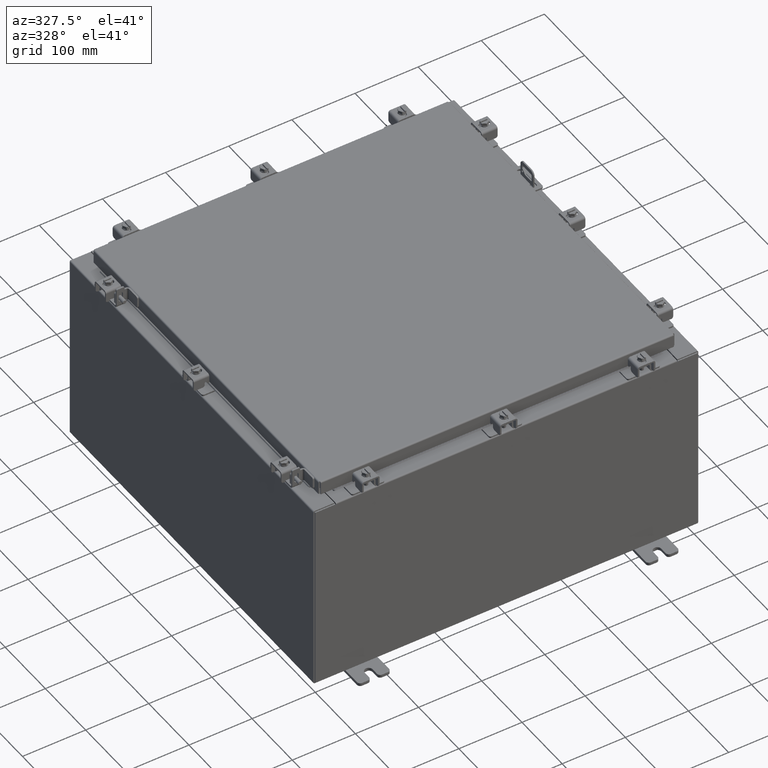
[diagram: clean part render]
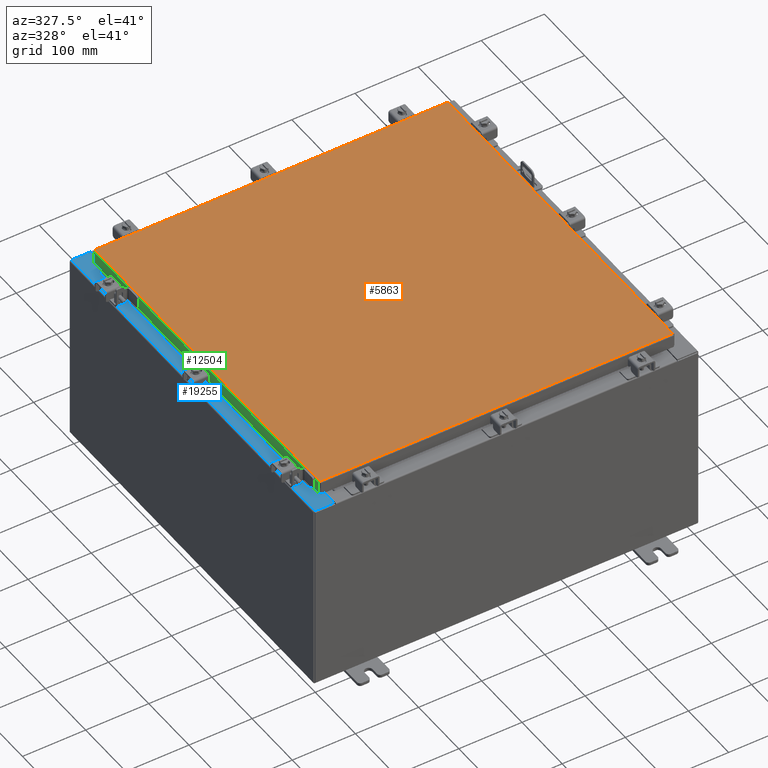
[diagram: same view with three faces highlighted in distinct colors, each labeled with its STEP entity id]
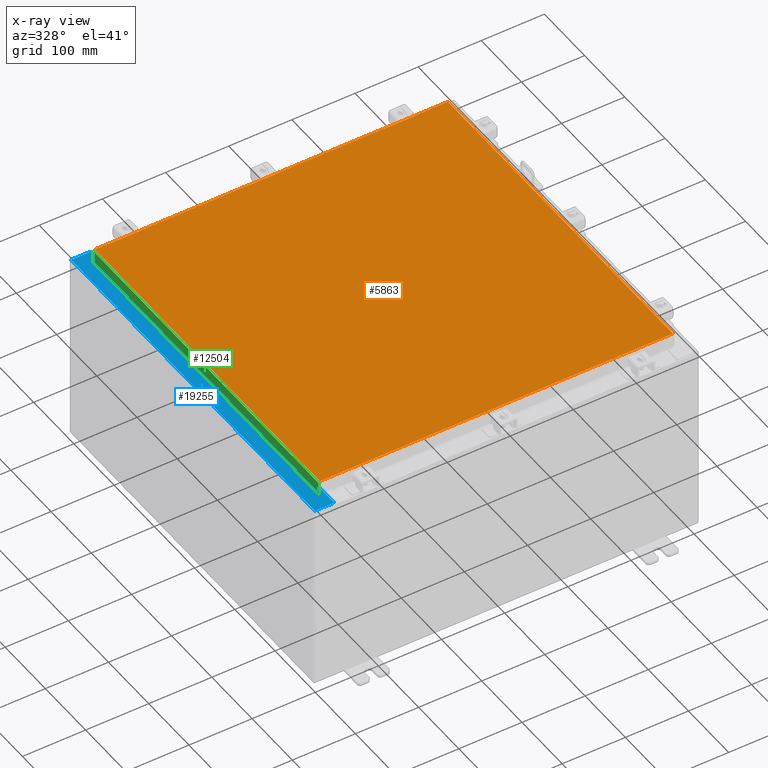
[diagram: x-ray of the same camera — body ghosted, the three highlighted faces saturated]
A machine part, auxiliary view with three faces highlighted in distinct colors.
The next image is the same camera in x-ray (body ghosted, the three faces saturated) — at least one of them is partly hidden behind the body in this view.
Their STEP definitions:

[orange] entity #5863 — the highlighted planar face has unit normal (0, 0, -1).
#693 = CARTESIAN_POINT ( 'NONE',  ( -11.00630000000000000, -11.00630000000000000, 0.0000000000000000000 ) ) ;
#790 = ORIENTED_EDGE ( 'NONE', *, *, #2454, .T. ) ;
#954 = ORIENTED_EDGE ( 'NONE', *, *, #8051, .T. ) ;
#2312 = VERTEX_POINT ( 'NONE', #11187 ) ;
#2454 = EDGE_CURVE ( 'NONE', #20577, #5805, #20436, .T. ) ;
#2459 = DIRECTION ( 'NONE',  ( 1.000000000000000000, -0.0000000000000000000, -0.0000000000000000000 ) ) ;
#2875 = LINE ( 'NONE', #20467, #8047 ) ;
#3463 = VERTEX_POINT ( 'NONE', #9737 ) ;
#3544 = VECTOR ( 'NONE', #4627, 39.37007874015748100 ) ;
#4627 = DIRECTION ( 'NONE',  ( 0.0000000000000000000, -1.000000000000000000, 0.0000000000000000000 ) ) ;
#4650 = CARTESIAN_POINT ( 'NONE',  ( -11.00630000000000000, -11.00630000000000000, 0.0000000000000000000 ) ) ;
#5280 = EDGE_CURVE ( 'NONE', #5805, #3463, #6664, .T. ) ;
#5805 = VERTEX_POINT ( 'NONE', #4650 ) ;
#5863 = ADVANCED_FACE ( 'NONE', ( #21640 ), #17292, .F. ) ;
#6664 = LINE ( 'NONE', #693, #15361 ) ;
#6748 = DIRECTION ( 'NONE',  ( -1.000000000000000000, -0.0000000000000000000, -0.0000000000000000000 ) ) ;
#6875 = DIRECTION ( 'NONE',  ( 0.0000000000000000000, 0.0000000000000000000, -1.000000000000000000 ) ) ;
#7724 = CARTESIAN_POINT ( 'NONE',  ( -11.00630000000000000, 11.00630000000000000, 0.0000000000000000000 ) ) ;
#8037 = EDGE_LOOP ( 'NONE', ( #14803, #11551, #954, #790 ) ) ;
#8047 = VECTOR ( 'NONE', #15195, 39.37007874015748100 ) ;
#8051 = EDGE_CURVE ( 'NONE', #2312, #20577, #19919, .T. ) ;
#9737 = CARTESIAN_POINT ( 'NONE',  ( 11.00630000000000000, -11.00630000000000000, 0.0000000000000000000 ) ) ;
#9858 = EDGE_CURVE ( 'NONE', #3463, #2312, #2875, .T. ) ;
#11149 = AXIS2_PLACEMENT_3D ( 'NONE', #13779, #6875, #19047 ) ;
#11187 = CARTESIAN_POINT ( 'NONE',  ( 11.00630000000000000, 11.00630000000000000, 0.0000000000000000000 ) ) ;
#11551 = ORIENTED_EDGE ( 'NONE', *, *, #9858, .T. ) ;
#13779 = CARTESIAN_POINT ( 'NONE',  ( 0.0000000000000000000, 0.0000000000000000000, 0.0000000000000000000 ) ) ;
#14803 = ORIENTED_EDGE ( 'NONE', *, *, #5280, .T. ) ;
#15019 = CARTESIAN_POINT ( 'NONE',  ( -11.00630000000000000, 11.00630000000000000, 0.0000000000000000000 ) ) ;
#15195 = DIRECTION ( 'NONE',  ( 0.0000000000000000000, 1.000000000000000000, 0.0000000000000000000 ) ) ;
#15361 = VECTOR ( 'NONE', #2459, 39.37007874015748100 ) ;
#15817 = VECTOR ( 'NONE', #6748, 39.37007874015748100 ) ;
#17292 = PLANE ( 'NONE',  #11149 ) ;
#18895 = CARTESIAN_POINT ( 'NONE',  ( 11.00630000000000000, 11.00630000000000000, 0.0000000000000000000 ) ) ;
#19047 = DIRECTION ( 'NONE',  ( -1.000000000000000000, 0.0000000000000000000, -0.0000000000000000000 ) ) ;
#19919 = LINE ( 'NONE', #18895, #15817 ) ;
#20436 = LINE ( 'NONE', #15019, #3544 ) ;
#20467 = CARTESIAN_POINT ( 'NONE',  ( 11.00630000000000000, -11.00630000000000000, 0.0000000000000000000 ) ) ;
#20577 = VERTEX_POINT ( 'NONE', #7724 ) ;
#21640 = FACE_OUTER_BOUND ( 'NONE', #8037, .T. ) ;

[blue] entity #19255 — the highlighted planar face has unit normal (0, 0, -1).
#20 = CIRCLE ( 'NONE', #10427, 0.01867499999999949400 ) ;
#240 = DIRECTION ( 'NONE',  ( 1.000000000000000000, 0.0000000000000000000, 0.0000000000000000000 ) ) ;
#475 = CARTESIAN_POINT ( 'NONE',  ( -10.71270000000004800, -10.59374999999998900, 11.92530000000000900 ) ) ;
#926 = LINE ( 'NONE', #22562, #5584 ) ;
#1228 = DIRECTION ( 'NONE',  ( 7.132762385546384700E-015, 0.0000000000000000000, -1.000000000000000000 ) ) ;
#1470 = VERTEX_POINT ( 'NONE', #8075 ) ;
#1617 = EDGE_LOOP ( 'NONE', ( #8914, #11695, #16918, #18798, #12690, #2845, #11885, #19704, #13685, #17496, #22480, #12405 ) ) ;
#1772 = LINE ( 'NONE', #4943, #10483 ) ;
#1778 = DIRECTION ( 'NONE',  ( -0.0000000000000000000, -1.000000000000000000, -0.0000000000000000000 ) ) ;
#1911 = CARTESIAN_POINT ( 'NONE',  ( -11.91230000000004500, 11.92529999999999800, 11.92530000000000000 ) ) ;
#1978 = DIRECTION ( 'NONE',  ( -0.0000000000000000000, 1.000000000000000000, -0.0000000000000000000 ) ) ;
#2146 = CARTESIAN_POINT ( 'NONE',  ( -10.75005000000004600, 10.59374999999999800, 11.92530000000000900 ) ) ;
#2252 = AXIS2_PLACEMENT_3D ( 'NONE', #11674, #1228, #13393 ) ;
#2845 = ORIENTED_EDGE ( 'NONE', *, *, #20452, .T. ) ;
#2948 = DIRECTION ( 'NONE',  ( -7.132762385546384700E-015, -0.0000000000000000000, 1.000000000000000000 ) ) ;
#3655 = VECTOR ( 'NONE', #1778, 39.37007874015748100 ) ;
#3999 = LINE ( 'NONE', #18251, #21979 ) ;
#4052 = LINE ( 'NONE', #15904, #22576 ) ;
#4216 = CARTESIAN_POINT ( 'NONE',  ( -10.69970000000004600, 10.63109999999999600, 11.92530000000000900 ) ) ;
#4345 = EDGE_CURVE ( 'NONE', #1470, #20784, #3999, .T. ) ;
#4500 = FACE_OUTER_BOUND ( 'NONE', #1617, .T. ) ;
#4943 = CARTESIAN_POINT ( 'NONE',  ( -8.532114493236847900E-014, -11.92530000000000000, 11.92530000000008500 ) ) ;
#5094 = EDGE_CURVE ( 'NONE', #11026, #12832, #1772, .T. ) ;
#5584 = VECTOR ( 'NONE', #18959, 39.37007874015748100 ) ;
#6042 = CARTESIAN_POINT ( 'NONE',  ( -10.75005000000004600, -10.61242499999998900, 11.92530000000000900 ) ) ;
#6709 = DIRECTION ( 'NONE',  ( 1.000000000000000000, -0.0000000000000000000, 7.132762385546384700E-015 ) ) ;
#6909 = VERTEX_POINT ( 'NONE', #19294 ) ;
#6951 = CARTESIAN_POINT ( 'NONE',  ( -10.69970000000004600, 0.0000000000000000000, 11.92530000000000900 ) ) ;
#7142 = EDGE_CURVE ( 'NONE', #21472, #20714, #13118, .T. ) ;
#7419 = DIRECTION ( 'NONE',  ( -1.000000000000000000, 0.0000000000000000000, 0.0000000000000000000 ) ) ;
#7768 = DIRECTION ( 'NONE',  ( 1.000000000000000000, 0.0000000000000000000, 0.0000000000000000000 ) ) ;
#7898 = EDGE_CURVE ( 'NONE', #18976, #22532, #20, .T. ) ;
#8036 = CARTESIAN_POINT ( 'NONE',  ( -10.75005000000004600, -10.63109999999998800, 11.92530000000000900 ) ) ;
#8075 = CARTESIAN_POINT ( 'NONE',  ( -10.69970000000004600, 11.92529999999999800, 11.92530000000000900 ) ) ;
#8120 = DIRECTION ( 'NONE',  ( 1.000000000000000000, 0.0000000000000000000, 0.0000000000000000000 ) ) ;
#8611 = DIRECTION ( 'NONE',  ( 0.0000000000000000000, 1.000000000000000000, 0.0000000000000000000 ) ) ;
#8812 = LINE ( 'NONE', #15710, #3655 ) ;
#8914 = ORIENTED_EDGE ( 'NONE', *, *, #19077, .F. ) ;
#9191 = CARTESIAN_POINT ( 'NONE',  ( -10.69970000000004600, -11.92530000000000000, 11.92530000000000900 ) ) ;
#9286 = EDGE_CURVE ( 'NONE', #10743, #1470, #21985, .T. ) ;
#9581 = CARTESIAN_POINT ( 'NONE',  ( -11.91230000000004500, -11.92530000000000000, 11.92530000000000000 ) ) ;
#10146 = VECTOR ( 'NONE', #8120, 39.37007874015748100 ) ;
#10427 = AXIS2_PLACEMENT_3D ( 'NONE', #13345, #2948, #15084 ) ;
#10477 = VERTEX_POINT ( 'NONE', #13341 ) ;
#10483 = VECTOR ( 'NONE', #6709, 39.37007874015748100 ) ;
#10665 = EDGE_CURVE ( 'NONE', #10477, #12151, #8812, .T. ) ;
#10743 = VERTEX_POINT ( 'NONE', #19367 ) ;
#11026 = VERTEX_POINT ( 'NONE', #9581 ) ;
#11523 = VECTOR ( 'NONE', #19562, 39.37007874015748100 ) ;
#11674 = CARTESIAN_POINT ( 'NONE',  ( -8.532114493236847900E-014, 0.0000000000000000000, 11.92530000000008500 ) ) ;
#11695 = ORIENTED_EDGE ( 'NONE', *, *, #9286, .T. ) ;
#11885 = ORIENTED_EDGE ( 'NONE', *, *, #14510, .F. ) ;
#12061 = LINE ( 'NONE', #12603, #11523 ) ;
#12151 = VERTEX_POINT ( 'NONE', #475 ) ;
#12405 = ORIENTED_EDGE ( 'NONE', *, *, #7898, .F. ) ;
#12603 = CARTESIAN_POINT ( 'NONE',  ( -10.69970000000004600, 0.0000000000000000000, 11.92530000000000900 ) ) ;
#12690 = ORIENTED_EDGE ( 'NONE', *, *, #5094, .T. ) ;
#12703 = VECTOR ( 'NONE', #8611, 39.37007874015748100 ) ;
#12832 = VERTEX_POINT ( 'NONE', #9191 ) ;
#13118 = CIRCLE ( 'NONE', #21080, 0.01867499999999949400 ) ;
#13285 = VECTOR ( 'NONE', #1978, 39.37007874015748100 ) ;
#13341 = CARTESIAN_POINT ( 'NONE',  ( -10.71270000000004800, 10.59374999999999800, 11.92530000000000900 ) ) ;
#13345 = CARTESIAN_POINT ( 'NONE',  ( -10.75005000000004600, 10.61242499999999800, 11.92530000000000900 ) ) ;
#13393 = DIRECTION ( 'NONE',  ( -1.000000000000000000, 0.0000000000000000000, -7.132762385546384700E-015 ) ) ;
#13501 = CARTESIAN_POINT ( 'NONE',  ( -11.91230000000004500, 11.92529999999999800, 11.92530000000000000 ) ) ;
#13685 = ORIENTED_EDGE ( 'NONE', *, *, #19708, .F. ) ;
#14510 = EDGE_CURVE ( 'NONE', #20714, #6909, #18862, .T. ) ;
#15084 = DIRECTION ( 'NONE',  ( 1.000000000000000000, 0.0000000000000000000, 0.0000000000000000000 ) ) ;
#15158 = CARTESIAN_POINT ( 'NONE',  ( -10.75005000000004600, -10.59374999999998900, 11.92530000000000900 ) ) ;
#15710 = CARTESIAN_POINT ( 'NONE',  ( -10.71270000000004800, 10.59374999999999300, 11.92530000000000900 ) ) ;
#15904 = CARTESIAN_POINT ( 'NONE',  ( -10.75005000000004600, 10.59374999999999800, 11.92530000000000900 ) ) ;
#16918 = ORIENTED_EDGE ( 'NONE', *, *, #4345, .T. ) ;
#17496 = ORIENTED_EDGE ( 'NONE', *, *, #10665, .F. ) ;
#17931 = LINE ( 'NONE', #1911, #13285 ) ;
#18210 = DIRECTION ( 'NONE',  ( -7.132762385546384700E-015, -0.0000000000000000000, 1.000000000000000000 ) ) ;
#18251 = CARTESIAN_POINT ( 'NONE',  ( -8.532114493236847900E-014, 11.92529999999999800, 11.92530000000008500 ) ) ;
#18316 = DIRECTION ( 'NONE',  ( -1.000000000000000000, 0.0000000000000000000, -7.132762385546384700E-015 ) ) ;
#18578 = PLANE ( 'NONE',  #2252 ) ;
#18798 = ORIENTED_EDGE ( 'NONE', *, *, #21733, .F. ) ;
#18862 = LINE ( 'NONE', #20304, #10146 ) ;
#18959 = DIRECTION ( 'NONE',  ( -1.000000000000000000, 0.0000000000000000000, 0.0000000000000000000 ) ) ;
#18976 = VERTEX_POINT ( 'NONE', #19378 ) ;
#19077 = EDGE_CURVE ( 'NONE', #10743, #18976, #20587, .T. ) ;
#19255 = ADVANCED_FACE ( 'NONE', ( #4500 ), #18578, .F. ) ;
#19294 = CARTESIAN_POINT ( 'NONE',  ( -10.69970000000004600, -10.63109999999999100, 11.92530000000000900 ) ) ;
#19367 = CARTESIAN_POINT ( 'NONE',  ( -10.69970000000004600, 10.63109999999999600, 11.92530000000000900 ) ) ;
#19378 = CARTESIAN_POINT ( 'NONE',  ( -10.75005000000004600, 10.63109999999999600, 11.92530000000000900 ) ) ;
#19562 = DIRECTION ( 'NONE',  ( 0.0000000000000000000, 1.000000000000000000, 0.0000000000000000000 ) ) ;
#19704 = ORIENTED_EDGE ( 'NONE', *, *, #7142, .F. ) ;
#19708 = EDGE_CURVE ( 'NONE', #12151, #21472, #926, .T. ) ;
#20304 = CARTESIAN_POINT ( 'NONE',  ( -10.75005000000004600, -10.63109999999998800, 11.92530000000000900 ) ) ;
#20452 = EDGE_CURVE ( 'NONE', #12832, #6909, #12061, .T. ) ;
#20587 = LINE ( 'NONE', #4216, #21138 ) ;
#20714 = VERTEX_POINT ( 'NONE', #8036 ) ;
#20784 = VERTEX_POINT ( 'NONE', #13501 ) ;
#21080 = AXIS2_PLACEMENT_3D ( 'NONE', #6042, #18210, #7768 ) ;
#21138 = VECTOR ( 'NONE', #7419, 39.37007874015748100 ) ;
#21472 = VERTEX_POINT ( 'NONE', #15158 ) ;
#21733 = EDGE_CURVE ( 'NONE', #11026, #20784, #17931, .T. ) ;
#21746 = EDGE_CURVE ( 'NONE', #22532, #10477, #4052, .T. ) ;
#21979 = VECTOR ( 'NONE', #18316, 39.37007874015748100 ) ;
#21985 = LINE ( 'NONE', #6951, #12703 ) ;
#22480 = ORIENTED_EDGE ( 'NONE', *, *, #21746, .F. ) ;
#22532 = VERTEX_POINT ( 'NONE', #2146 ) ;
#22562 = CARTESIAN_POINT ( 'NONE',  ( -10.71270000000004800, -10.59374999999998900, 11.92530000000000900 ) ) ;
#22576 = VECTOR ( 'NONE', #240, 39.37007874015748100 ) ;

[green] entity #12504 — the highlighted planar face has unit normal (1, 0, -0).
#213 = CARTESIAN_POINT ( 'NONE',  ( -11.09400000000000100, -11.09400000000000100, -0.8499999999999999800 ) ) ;
#1710 = ORIENTED_EDGE ( 'NONE', *, *, #18255, .F. ) ;
#1872 = ORIENTED_EDGE ( 'NONE', *, *, #14040, .F. ) ;
#2372 = LINE ( 'NONE', #4159, #20903 ) ;
#2694 = CARTESIAN_POINT ( 'NONE',  ( -11.09400000000000100, -11.09400000000000100, -0.8499999999999999800 ) ) ;
#2832 = CARTESIAN_POINT ( 'NONE',  ( -11.09399999999999900, -11.00515786437626700, -0.08770000000000026400 ) ) ;
#2861 = VERTEX_POINT ( 'NONE', #12233 ) ;
#2978 = PLANE ( 'NONE',  #15380 ) ;
#3104 = EDGE_CURVE ( 'NONE', #17968, #2861, #14662, .T. ) ;
#3253 = CARTESIAN_POINT ( 'NONE',  ( -11.09399999999999200, 10.25515786437627200, -0.8500000000000020900 ) ) ;
#3894 = VECTOR ( 'NONE', #10943, 39.37007874015748100 ) ;
#4159 = CARTESIAN_POINT ( 'NONE',  ( -11.09399999999999900, -11.00515786437626700, -0.07470000000000015500 ) ) ;
#4364 = VERTEX_POINT ( 'NONE', #20101 ) ;
#4451 = VECTOR ( 'NONE', #10491, 39.37007874015748100 ) ;
#5031 = LINE ( 'NONE', #2694, #9089 ) ;
#5107 = ORIENTED_EDGE ( 'NONE', *, *, #12835, .F. ) ;
#5259 = FACE_OUTER_BOUND ( 'NONE', #16386, .T. ) ;
#5440 = EDGE_CURVE ( 'NONE', #22171, #2861, #5031, .T. ) ;
#5476 = DIRECTION ( 'NONE',  ( 4.379057701015054300E-047, 1.000000000000000000, 1.169666303398706800E-016 ) ) ;
#5720 = CARTESIAN_POINT ( 'NONE',  ( -11.09399999999999200, -10.25515786437626400, -0.8500000000000020900 ) ) ;
#7488 = EDGE_CURVE ( 'NONE', #4364, #18453, #19935, .T. ) ;
#8498 = LINE ( 'NONE', #5720, #3894 ) ;
#9068 = LINE ( 'NONE', #15666, #4451 ) ;
#9089 = VECTOR ( 'NONE', #21869, 39.37007874015748100 ) ;
#9966 = DIRECTION ( 'NONE',  ( 1.000000000000000000, 3.297150052053607500E-031, -2.818880942772360100E-015 ) ) ;
#10038 = VECTOR ( 'NONE', #11084, 39.37007874015748100 ) ;
#10491 = DIRECTION ( 'NONE',  ( 3.297150052053608400E-031, -1.000000000000000000, -8.987264781119276500E-046 ) ) ;
#10943 = DIRECTION ( 'NONE',  ( -0.0000000000000000000, 1.000000000000000000, -0.0000000000000000000 ) ) ;
#11084 = DIRECTION ( 'NONE',  ( -2.818880942772360100E-015, 6.982962677686267500E-015, -1.000000000000000000 ) ) ;
#12058 = ORIENTED_EDGE ( 'NONE', *, *, #3104, .T. ) ;
#12148 = ORIENTED_EDGE ( 'NONE', *, *, #7488, .F. ) ;
#12233 = CARTESIAN_POINT ( 'NONE',  ( -11.09400000000000100, 11.00515786437627100, -0.8499999999999977600 ) ) ;
#12504 = ADVANCED_FACE ( 'NONE', ( #5259 ), #2978, .F. ) ;
#12835 = EDGE_CURVE ( 'NONE', #18453, #22171, #8498, .T. ) ;
#13373 = CARTESIAN_POINT ( 'NONE',  ( -11.09399999999999900, 0.0000000000000000000, 3.059669752903974500E-014 ) ) ;
#14040 = EDGE_CURVE ( 'NONE', #17968, #16945, #9068, .T. ) ;
#14662 = LINE ( 'NONE', #16246, #10038 ) ;
#15278 = VECTOR ( 'NONE', #5476, 39.37007874015748100 ) ;
#15380 = AXIS2_PLACEMENT_3D ( 'NONE', #13373, #9966, #22147 ) ;
#15666 = CARTESIAN_POINT ( 'NONE',  ( -11.09399999999999900, -11.09400000000000100, -0.08770000000000026400 ) ) ;
#16246 = CARTESIAN_POINT ( 'NONE',  ( -11.09399999999999900, 11.00515786437626700, 1.092739197465705300E-013 ) ) ;
#16386 = EDGE_LOOP ( 'NONE', ( #1872, #12058, #20213, #5107, #12148, #1710 ) ) ;
#16945 = VERTEX_POINT ( 'NONE', #2832 ) ;
#17561 = CARTESIAN_POINT ( 'NONE',  ( -11.09399999999999900, 11.00515786437626900, -0.08770000000000026400 ) ) ;
#17968 = VERTEX_POINT ( 'NONE', #17561 ) ;
#18091 = CARTESIAN_POINT ( 'NONE',  ( -11.09399999999999200, -10.25515786437626400, -0.8500000000000020900 ) ) ;
#18255 = EDGE_CURVE ( 'NONE', #16945, #4364, #2372, .T. ) ;
#18453 = VERTEX_POINT ( 'NONE', #18091 ) ;
#19935 = LINE ( 'NONE', #213, #15278 ) ;
#20101 = CARTESIAN_POINT ( 'NONE',  ( -11.09400000000000100, -11.00515786437626200, -0.8499999999999999800 ) ) ;
#20213 = ORIENTED_EDGE ( 'NONE', *, *, #5440, .F. ) ;
#20903 = VECTOR ( 'NONE', #22545, 39.37007874015748100 ) ;
#21869 = DIRECTION ( 'NONE',  ( 4.379057701015054300E-047, 1.000000000000000000, 1.169666303398706800E-016 ) ) ;
#22147 = DIRECTION ( 'NONE',  ( -2.818880942772360100E-015, 0.0000000000000000000, -1.000000000000000000 ) ) ;
#22171 = VERTEX_POINT ( 'NONE', #3253 ) ;
#22545 = DIRECTION ( 'NONE',  ( -2.818880942772360100E-015, 6.982962677686267500E-015, -1.000000000000000000 ) ) ;